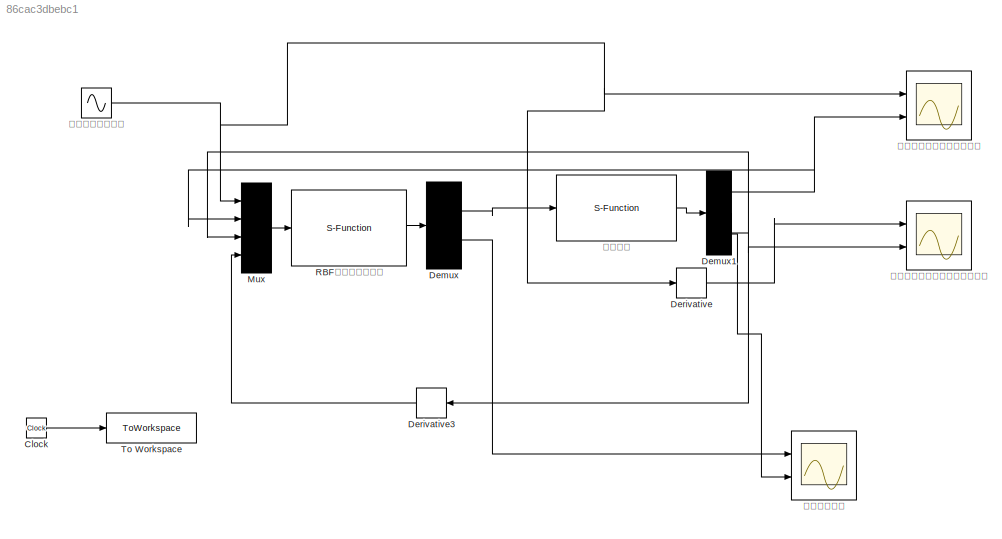
MODEL slx_86cac3dbebc1
KIND model
CONFIG AbsTol = auto
CONFIG EnableMultiTasking = off
CONFIG FixedStep = 0.001
CONFIG MaxStep = auto
CONFIG MinStep = auto
CONFIG RelTol = 1e-3
CONFIG SampleTimeConstraint = Unconstrained
CONFIG Solver = ode4
CONFIG SolverName = ode4
CONFIG StartTime = 0.0
CONFIG StopTime = 10.0
BLOCK [Clock] Clock
BLOCK [Demux] Demux
  DisplayOption = bar
  Outputs = 2
  Ports = [1, 2]
BLOCK [Demux] Demux1
  DisplayOption = bar
  Outputs = 3
  Ports = [1, 3]
BLOCK [Derivative] Derivative
BLOCK [Derivative] Derivative3
BLOCK [Mux] Mux
  DisplayOption = bar
  Ports = [4, 1]
BLOCK [S-Function] RBF神经网络控制器
  EnableBusSupport = off
  FunctionName = Book6331_Controller
  Ports = [1, 1]
  SFcnIsStateOwnerBlock = off
  SFunctionDeploymentMode = off
BLOCK [ToWorkspace] To Workspace
  FixptAsFi = on
  MaxDataPoints = inf
  Ports = [1]
  SampleTime = -1
  SaveFormat = Timeseries
  VariableName = time
BLOCK [S-Function] 二阶模型
  EnableBusSupport = off
  FunctionName = Book6331_Plant
  Ports = [1, 1]
  SFcnIsStateOwnerBlock = off
  SFunctionDeploymentMode = off
BLOCK [Scope] 关节一期望角度与实际角度
  Floating = off
  NumInputPorts = 2
  Ports = [2]
  ScopeSpecificationString = Simulink.scopes.TimeScopeBlockCfg('CurrentConfiguration', extmgr.ConfigurationSet(extmgr.Configuration('Core','General UI',true,'FigureColor',[1 1 1]),extmgr.Configuration('Core','Source UI',true),extmgr.Configuration('Sources','WiredSimulink',true,'DataLoggingVariableName','ScopeData1'),extmgr.Configuration('Visuals','Time Domain',true,'SerializedDisplays',{struct('MinYLimReal','-1.25258','MaxYLi...<+1585ch>
BLOCK [Scope] 关节一期望角速度与实际角速度
  Floating = off
  NumInputPorts = 2
  Ports = [2]
  ScopeSpecificationString = Simulink.scopes.TimeScopeBlockCfg('CurrentConfiguration', extmgr.ConfigurationSet(extmgr.Configuration('Core','General UI',true,'FigureColor',[1 1 1]),extmgr.Configuration('Core','Source UI',true),extmgr.Configuration('Sources','WiredSimulink',true,'DataLoggingVariableName','ScopeData2'),extmgr.Configuration('Visuals','Time Domain',true,'SerializedDisplays',{struct('MinYLimReal','-1.28911','MaxYLi...<+1568ch>
BLOCK [Scope] 外界干扰估计
  Floating = off
  NumInputPorts = 2
  Ports = [2]
  ScopeSpecificationString = Simulink.scopes.TimeScopeBlockCfg('CurrentConfiguration', extmgr.ConfigurationSet(extmgr.Configuration('Core','General UI',true,'FigureColor',[1 1 1]),extmgr.Configuration('Core','Source UI',true),extmgr.Configuration('Sources','WiredSimulink',true),extmgr.Configuration('Visuals','Time Domain',true,'SerializedDisplays',{struct('MinYLimReal','-239.08433','MaxYLimReal','263.90542','YLabelReal','','M...<+1825ch>
BLOCK [Sin] 给定关节角一轨迹
  Ports = [0, 1]
  SampleTime = 0
LINE Clock:1 -> To Workspace:1
NET Demux1:1 -> Mux:2, 关节一期望角度与实际角度:2
NET Demux1:2 -> Derivative3:1, Mux:3, 关节一期望角速度与实际角速度:2
LINE Demux1:3 -> 外界干扰估计:2
LINE Demux:1 -> 二阶模型:1
LINE Demux:2 -> 外界干扰估计:1
LINE Derivative3:1 -> Mux:4
LINE Derivative:1 -> 关节一期望角速度与实际角速度:1
LINE Mux:1 -> RBF神经网络控制器:1
LINE RBF神经网络控制器:1 -> Demux:1
LINE 二阶模型:1 -> Demux1:1
NET 给定关节角一轨迹:1 -> Derivative:1, Mux:1, 关节一期望角度与实际角度:1
note: NET lines group one-source signal fan-out (src -> all destinations, sorted); 1:1 wires keep LINE
